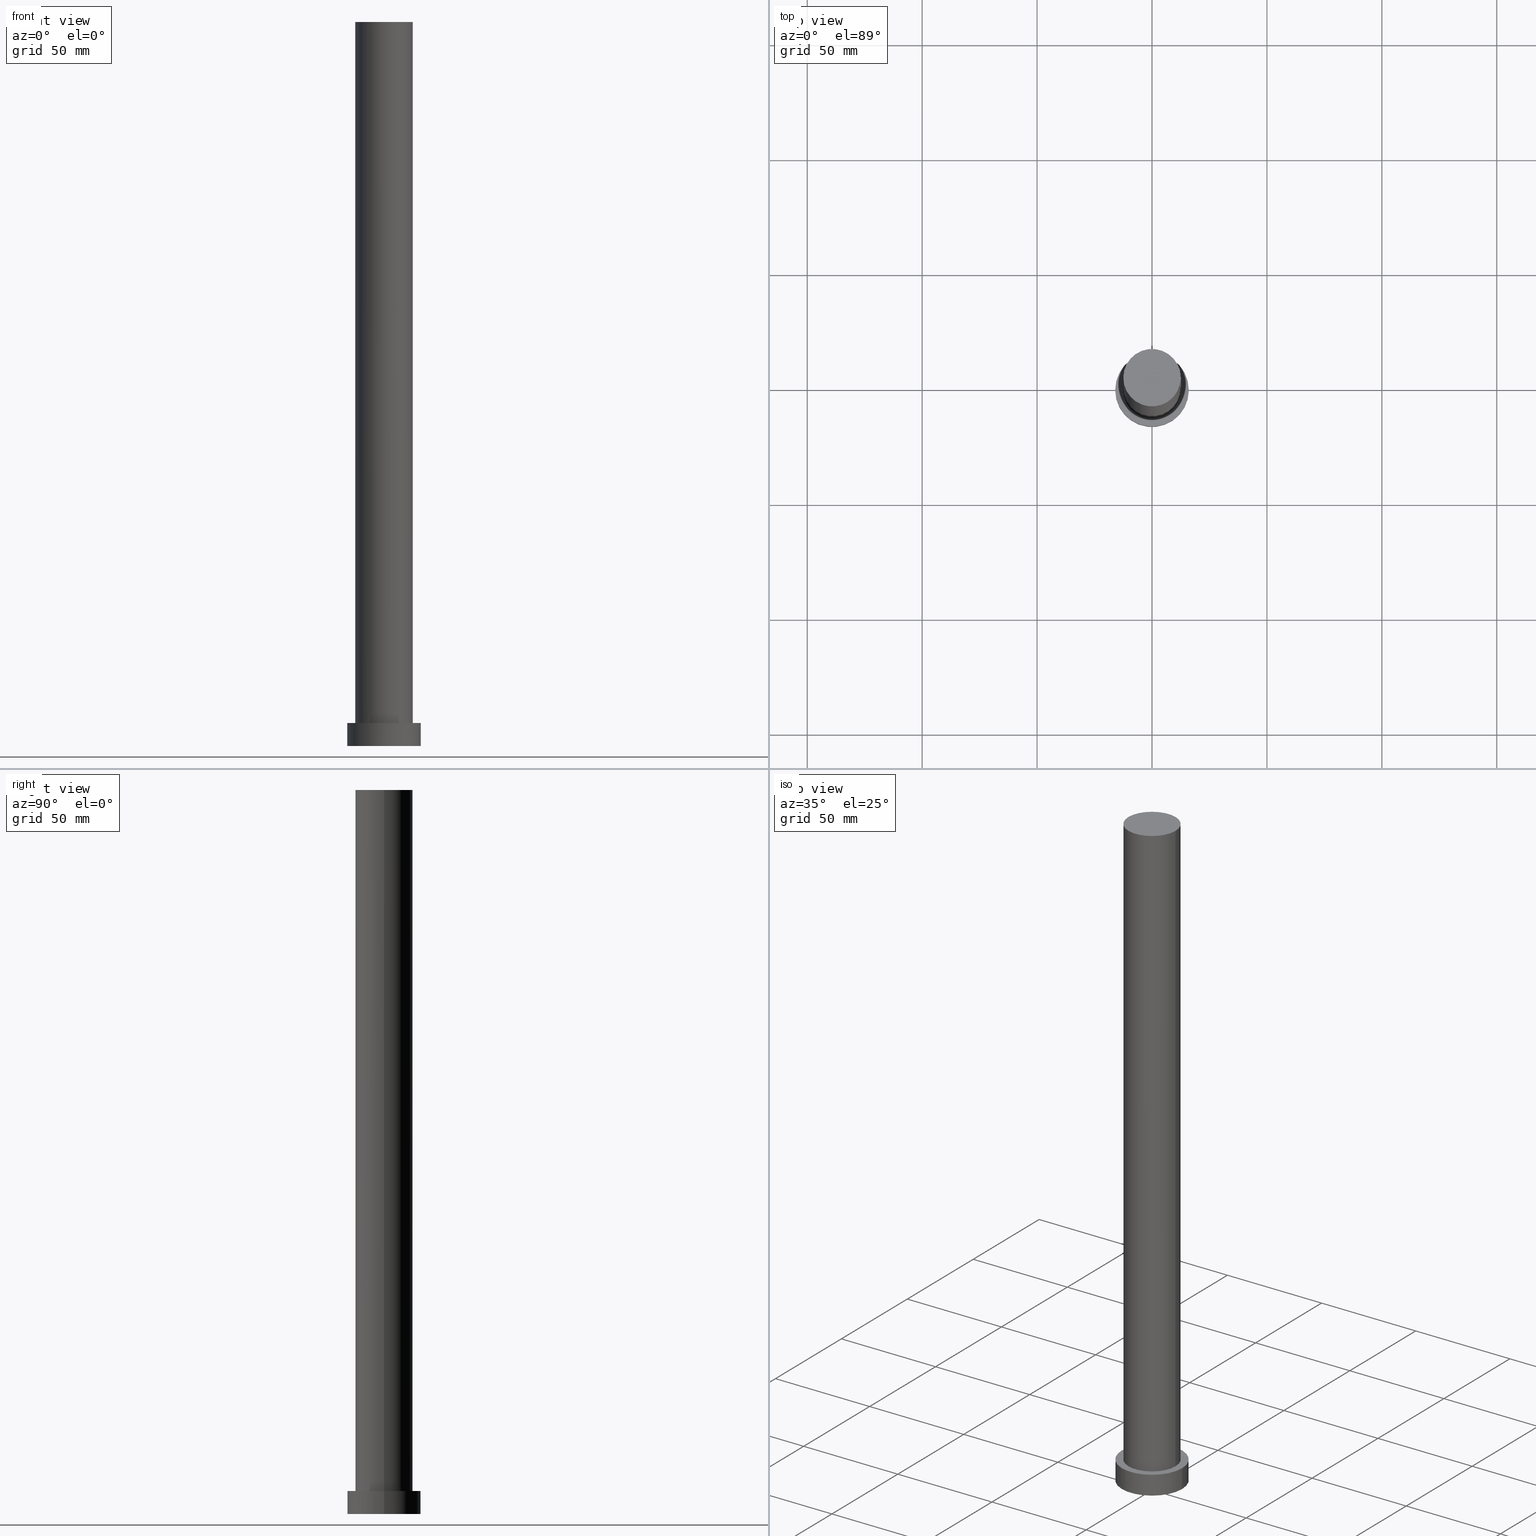
[diagram: canonical four-view strip — front | top / right | iso, engineering-drawing reading convention]
A machine part, canonical four-view strip (front | top / right | iso — engineering-drawing reading convention). The complete STEP part file that produces these views, byte-faithful:
ISO-10303-21;
HEADER;
FILE_DESCRIPTION (( 'STEP AP203' ),
    '1' );
FILE_NAME ('b6da.STEP',
    '2026-02-06T12:34:42',
    ( '' ),
    ( '' ),
    'SwSTEP 2.0',
    'SolidWorks 2019',
    '' );
FILE_SCHEMA (( 'CONFIG_CONTROL_DESIGN' ));
ENDSEC;

DATA;
#1 = CC_DESIGN_DATE_AND_TIME_ASSIGNMENT ( #181, #232, ( #220 ) ) ;
#2 = CIRCLE ( 'NONE', #165, 12.50000000000000000 ) ;
#3 = VERTEX_POINT ( 'NONE', #89 ) ;
#4 = MANIFOLD_SOLID_BREP ( 'P�idat vysunut�m3', #244 ) ;
#5 = MECHANICAL_CONTEXT ( 'NONE', #82, 'mechanical' ) ;
#6 = CARTESIAN_POINT ( 'NONE',  ( -12.50000000000000000, 0.000000000000000000, 10.00000000000000000 ) ) ;
#7 = DATE_AND_TIME ( #138, #93 ) ;
#8 = FACE_BOUND ( 'NONE', #28, .T. ) ;
#9 = APPROVAL_PERSON_ORGANIZATION ( #214, #72, #33 ) ;
#10 = DIRECTION ( 'NONE',  ( 0.000000000000000000, 0.000000000000000000, 1.000000000000000000 ) ) ;
#11 = DATE_TIME_ROLE ( 'creation_date' ) ;
#12 = LINE ( 'NONE', #186, #53 ) ;
#13 = EDGE_CURVE ( 'NONE', #167, #3, #151, .T. ) ;
#14 = DATE_AND_TIME ( #60, #115 ) ;
#15 = DIRECTION ( 'NONE',  ( -0.000000000000000000, -0.000000000000000000, -1.000000000000000000 ) ) ;
#16 = VECTOR ( 'NONE', #219, 1000.000000000000000 ) ;
#17 = CIRCLE ( 'NONE', #178, 16.00000000000000000 ) ;
#18 = ORIENTED_EDGE ( 'NONE', *, *, #23, .F. ) ;
#19 = DESIGN_CONTEXT ( 'detailed design', #134, 'design' ) ;
#20 = EDGE_LOOP ( 'NONE', ( #200, #126, #236, #18 ) ) ;
#21 = COORDINATED_UNIVERSAL_TIME_OFFSET ( 1, 0, .AHEAD. ) ;
#22 = VERTEX_POINT ( 'NONE', #207 ) ;
#23 = EDGE_CURVE ( 'NONE', #160, #169, #209, .T. ) ;
#24 = UNCERTAINTY_MEASURE_WITH_UNIT (LENGTH_MEASURE( 1.000000000000000082E-05 ), #45, 'distance_accuracy_value', 'NONE');
#25 = CC_DESIGN_SECURITY_CLASSIFICATION ( #220, ( #31 ) ) ;
#26 = CIRCLE ( 'NONE', #145, 16.00000000000000000 ) ;
#27 = VERTEX_POINT ( 'NONE', #6 ) ;
#28 = EDGE_LOOP ( 'NONE', ( #107, #162 ) ) ;
#29 = APPROVAL_ROLE ( '' ) ;
#30 = AXIS2_PLACEMENT_3D ( 'NONE', #74, #225, #59 ) ;
#31 = PRODUCT_DEFINITION_FORMATION_WITH_SPECIFIED_SOURCE ( 'LIBOVOLN�', '', #210, .NOT_KNOWN. ) ;
#32 = ORIENTED_EDGE ( 'NONE', *, *, #129, .F. ) ;
#33 = APPROVAL_ROLE ( '' ) ;
#34 = PERSON_AND_ORGANIZATION ( #133, #233 ) ;
#35 = CARTESIAN_POINT ( 'NONE',  ( -16.00000000000000000, 0.000000000000000000, 10.00000000000000000 ) ) ;
#36 = APPROVAL_DATE_TIME ( #7, #72 ) ;
#37 = PERSON_AND_ORGANIZATION_ROLE ( 'design_owner' ) ;
#38 = DIRECTION ( 'NONE',  ( -0.000000000000000000, -0.000000000000000000, -1.000000000000000000 ) ) ;
#39 = EDGE_CURVE ( 'NONE', #22, #49, #135, .T. ) ;
#40 = DIRECTION ( 'NONE',  ( 1.000000000000000000, 0.000000000000000000, 0.000000000000000000 ) ) ;
#41 = DIRECTION ( 'NONE',  ( 0.000000000000000000, 0.000000000000000000, 1.000000000000000000 ) ) ;
#42 = FACE_OUTER_BOUND ( 'NONE', #20, .T. ) ;
#43 = AXIS2_PLACEMENT_3D ( 'NONE', #141, #123, #242 ) ;
#44 = ORIENTED_EDGE ( 'NONE', *, *, #229, .T. ) ;
#45 =( LENGTH_UNIT ( ) NAMED_UNIT ( * ) SI_UNIT ( .MILLI., .METRE. ) );
#46 = ADVANCED_FACE ( 'NONE', ( #55 ), #189, .T. ) ;
#47 = AXIS2_PLACEMENT_3D ( 'NONE', #174, #10, #248 ) ;
#48 = CC_DESIGN_APPROVAL ( #106, ( #168 ) ) ;
#49 = VERTEX_POINT ( 'NONE', #241 ) ;
#50 = ORIENTED_EDGE ( 'NONE', *, *, #249, .T. ) ;
#51 = CC_DESIGN_PERSON_AND_ORGANIZATION_ASSIGNMENT ( #175, #108, ( #31 ) ) ;
#52 = APPROVAL_STATUS ( 'not_yet_approved' ) ;
#53 = VECTOR ( 'NONE', #15, 1000.000000000000000 ) ;
#54 = APPROVAL_PERSON_ORGANIZATION ( #170, #106, #29 ) ;
#55 = FACE_OUTER_BOUND ( 'NONE', #254, .T. ) ;
#56 = CYLINDRICAL_SURFACE ( 'NONE', #78, 12.50000000000000000 ) ;
#57 = PLANE ( 'NONE',  #183 ) ;
#58 = EDGE_CURVE ( 'NONE', #22, #111, #142, .T. ) ;
#59 = DIRECTION ( 'NONE',  ( -1.000000000000000000, 0.000000000000000000, 0.000000000000000000 ) ) ;
#60 = CALENDAR_DATE ( 2026, 6, 2 ) ;
#61 = FACE_OUTER_BOUND ( 'NONE', #195, .T. ) ;
#62 = DIRECTION ( 'NONE',  ( 0.000000000000000000, 0.000000000000000000, 1.000000000000000000 ) ) ;
#63 = PERSON_AND_ORGANIZATION_ROLE ( 'design_supplier' ) ;
#64 = ADVANCED_FACE ( 'NONE', ( #42 ), #245, .T. ) ;
#65 = CIRCLE ( 'NONE', #205, 12.50000000000000000 ) ;
#66 = EDGE_LOOP ( 'NONE', ( #179, #144, #44, #105 ) ) ;
#67 = DIRECTION ( 'NONE',  ( 0.000000000000000000, 0.000000000000000000, 1.000000000000000000 ) ) ;
#68 = EDGE_CURVE ( 'NONE', #27, #111, #2, .T. ) ;
#69 = FACE_OUTER_BOUND ( 'NONE', #66, .T. ) ;
#70 = DIRECTION ( 'NONE',  ( 1.000000000000000000, 0.000000000000000000, 0.000000000000000000 ) ) ;
#71 = CARTESIAN_POINT ( 'NONE',  ( -16.00000000000000000, 0.000000000000000000, 10.00000000000000000 ) ) ;
#72 = APPROVAL ( #52, 'NEUR�EN�' ) ;
#73 = COORDINATED_UNIVERSAL_TIME_OFFSET ( 1, 0, .AHEAD. ) ;
#74 = CARTESIAN_POINT ( 'NONE',  ( 0.000000000000000000, 0.000000000000000000, 10.00000000000000000 ) ) ;
#75 = APPROVAL_ROLE ( '' ) ;
#76 = PLANE ( 'NONE',  #94 ) ;
#77 = DIRECTION ( 'NONE',  ( 0.000000000000000000, 0.000000000000000000, 1.000000000000000000 ) ) ;
#78 = AXIS2_PLACEMENT_3D ( 'NONE', #250, #38, #120 ) ;
#79 = LOCAL_TIME ( 13, 34, 42.00000000000000000, #73 ) ;
#80 = PERSON_AND_ORGANIZATION ( #133, #233 ) ;
#81 = CALENDAR_DATE ( 2026, 6, 2 ) ;
#82 = APPLICATION_CONTEXT ( 'configuration controlled 3d designs of mechanical parts and assemblies' ) ;
#83 =( NAMED_UNIT ( * ) PLANE_ANGLE_UNIT ( ) SI_UNIT ( $, .RADIAN. ) );
#84 = DIRECTION ( 'NONE',  ( 0.000000000000000000, 0.000000000000000000, 1.000000000000000000 ) ) ;
#85 = AXIS2_PLACEMENT_3D ( 'NONE', #171, #246, #137 ) ;
#86 = CC_DESIGN_APPROVAL ( #125, ( #31 ) ) ;
#87 = ORIENTED_EDGE ( 'NONE', *, *, #103, .T. ) ;
#88 = COORDINATED_UNIVERSAL_TIME_OFFSET ( 1, 0, .AHEAD. ) ;
#89 = CARTESIAN_POINT ( 'NONE',  ( 16.00000000000000000, 1.959434878635765131E-15, 0.000000000000000000 ) ) ;
#90 = CALENDAR_DATE ( 2026, 6, 2 ) ;
#91 = CARTESIAN_POINT ( 'NONE',  ( 0.000000000000000000, 0.000000000000000000, 315.0000000000000000 ) ) ;
#92 = CARTESIAN_POINT ( 'NONE',  ( 0.000000000000000000, 0.000000000000000000, 10.00000000000000000 ) ) ;
#93 = LOCAL_TIME ( 13, 34, 42.00000000000000000, #88 ) ;
#94 = AXIS2_PLACEMENT_3D ( 'NONE', #230, #62, #143 ) ;
#95 = PERSON_AND_ORGANIZATION_ROLE ( 'creator' ) ;
#96 = DIRECTION ( 'NONE',  ( 1.000000000000000000, 0.000000000000000000, 0.000000000000000000 ) ) ;
#97 = CALENDAR_DATE ( 2026, 6, 2 ) ;
#98 = CARTESIAN_POINT ( 'NONE',  ( 12.50000000000000000, 1.530808498934191521E-15, 10.00000000000000000 ) ) ;
#99 = CARTESIAN_POINT ( 'NONE',  ( 0.000000000000000000, 0.000000000000000000, 0.000000000000000000 ) ) ;
#100 = APPROVAL_DATE_TIME ( #14, #125 ) ;
#101 = DIRECTION ( 'NONE',  ( 0.000000000000000000, 0.000000000000000000, 1.000000000000000000 ) ) ;
#102 = DIRECTION ( 'NONE',  ( 1.000000000000000000, 0.000000000000000000, 0.000000000000000000 ) ) ;
#103 = EDGE_CURVE ( 'NONE', #49, #27, #12, .T. ) ;
#104 = ORIENTED_EDGE ( 'NONE', *, *, #235, .F. ) ;
#105 = ORIENTED_EDGE ( 'NONE', *, *, #103, .F. ) ;
#106 = APPROVAL ( #240, 'NEUR�EN�' ) ;
#107 = ORIENTED_EDGE ( 'NONE', *, *, #68, .F. ) ;
#108 = PERSON_AND_ORGANIZATION_ROLE ( 'creator' ) ;
#109 = EDGE_LOOP ( 'NONE', ( #203, #50 ) ) ;
#110 = ADVANCED_BREP_SHAPE_REPRESENTATION ( 'b6da', ( #4, #136 ), #252 ) ;
#111 = VERTEX_POINT ( 'NONE', #98 ) ;
#112 = CC_DESIGN_PERSON_AND_ORGANIZATION_ASSIGNMENT ( #222, #95, ( #168 ) ) ;
#113 = ORIENTED_EDGE ( 'NONE', *, *, #68, .T. ) ;
#114 = APPROVAL_DATE_TIME ( #243, #106 ) ;
#115 = LOCAL_TIME ( 13, 34, 42.00000000000000000, #153 ) ;
#116 = ORIENTED_EDGE ( 'NONE', *, *, #39, .T. ) ;
#117 = APPLICATION_PROTOCOL_DEFINITION ( 'international standard', 'config_control_design', 1994, #134 ) ;
#118 = CARTESIAN_POINT ( 'NONE',  ( 12.50000000000000000, 1.530808498934191521E-15, 315.0000000000000000 ) ) ;
#119 = SHAPE_DEFINITION_REPRESENTATION ( #139, #110 ) ;
#120 = DIRECTION ( 'NONE',  ( -1.000000000000000000, 0.000000000000000000, 0.000000000000000000 ) ) ;
#121 = DIRECTION ( 'NONE',  ( -0.000000000000000000, -0.000000000000000000, -1.000000000000000000 ) ) ;
#122 = FACE_OUTER_BOUND ( 'NONE', #146, .T. ) ;
#123 = DIRECTION ( 'NONE',  ( -0.000000000000000000, -0.000000000000000000, -1.000000000000000000 ) ) ;
#124 = APPROVAL_STATUS ( 'not_yet_approved' ) ;
#125 = APPROVAL ( #124, 'NEUR�EN�' ) ;
#126 = ORIENTED_EDGE ( 'NONE', *, *, #13, .T. ) ;
#127 = SECURITY_CLASSIFICATION_LEVEL ( 'unclassified' ) ;
#128 = ORIENTED_EDGE ( 'NONE', *, *, #58, .F. ) ;
#129 = EDGE_CURVE ( 'NONE', #169, #3, #156, .T. ) ;
#130 = CC_DESIGN_APPROVAL ( #72, ( #220 ) ) ;
#131 = ORIENTED_EDGE ( 'NONE', *, *, #13, .F. ) ;
#132 = CC_DESIGN_DATE_AND_TIME_ASSIGNMENT ( #191, #11, ( #168 ) ) ;
#133 = PERSON ( 'NEUR�EN�', 'NEUR�EN�', 'NEUR�EN�', ('NEUR�EN�'), ('NEUR�EN�'), ('NEUR�EN�') ) ;
#134 = APPLICATION_CONTEXT ( 'configuration controlled 3d designs of mechanical parts and assemblies' ) ;
#135 = CIRCLE ( 'NONE', #190, 12.50000000000000000 ) ;
#136 = AXIS2_PLACEMENT_3D ( 'NONE', #239, #67, #149 ) ;
#137 = DIRECTION ( 'NONE',  ( -1.000000000000000000, 0.000000000000000000, 0.000000000000000000 ) ) ;
#138 = CALENDAR_DATE ( 2026, 6, 2 ) ;
#139 = PRODUCT_DEFINITION_SHAPE ( 'NONE', 'NONE',  #168 ) ;
#140 = DIRECTION ( 'NONE',  ( -0.000000000000000000, -0.000000000000000000, -1.000000000000000000 ) ) ;
#141 = CARTESIAN_POINT ( 'NONE',  ( 0.000000000000000000, 0.000000000000000000, 10.00000000000000000 ) ) ;
#142 = LINE ( 'NONE', #118, #227 ) ;
#143 = DIRECTION ( 'NONE',  ( 1.000000000000000000, 0.000000000000000000, -0.000000000000000000 ) ) ;
#144 = ORIENTED_EDGE ( 'NONE', *, *, #58, .T. ) ;
#145 = AXIS2_PLACEMENT_3D ( 'NONE', #155, #224, #96 ) ;
#146 = EDGE_LOOP ( 'NONE', ( #131, #104, #237, #198 ) ) ;
#147 = LOCAL_TIME ( 13, 34, 42.00000000000000000, #21 ) ;
#148 = ADVANCED_FACE ( 'NONE', ( #69 ), #56, .T. ) ;
#149 = DIRECTION ( 'NONE',  ( 1.000000000000000000, 0.000000000000000000, 0.000000000000000000 ) ) ;
#150 = PLANE ( 'NONE',  #251 ) ;
#151 = LINE ( 'NONE', #176, #202 ) ;
#152 = ADVANCED_FACE ( 'NONE', ( #158 ), #76, .T. ) ;
#153 = COORDINATED_UNIVERSAL_TIME_OFFSET ( 1, 0, .AHEAD. ) ;
#154 = CARTESIAN_POINT ( 'NONE',  ( -16.00000000000000000, 0.000000000000000000, 0.000000000000000000 ) ) ;
#155 = CARTESIAN_POINT ( 'NONE',  ( 0.000000000000000000, 0.000000000000000000, 0.000000000000000000 ) ) ;
#156 = CIRCLE ( 'NONE', #47, 16.00000000000000000 ) ;
#157 = AXIS2_PLACEMENT_3D ( 'NONE', #247, #194, #102 ) ;
#158 = FACE_OUTER_BOUND ( 'NONE', #182, .T. ) ;
#159 = DIRECTION ( 'NONE',  ( 1.000000000000000000, 0.000000000000000000, -0.000000000000000000 ) ) ;
#160 = VERTEX_POINT ( 'NONE', #35 ) ;
#161 = PERSON_AND_ORGANIZATION ( #133, #233 ) ;
#162 = ORIENTED_EDGE ( 'NONE', *, *, #229, .F. ) ;
#163 = CC_DESIGN_PERSON_AND_ORGANIZATION_ASSIGNMENT ( #161, #199, ( #220 ) ) ;
#164 = DIRECTION ( 'NONE',  ( 1.000000000000000000, 0.000000000000000000, 0.000000000000000000 ) ) ;
#165 = AXIS2_PLACEMENT_3D ( 'NONE', #192, #187, #223 ) ;
#166 = AXIS2_PLACEMENT_3D ( 'NONE', #177, #253, #70 ) ;
#167 = VERTEX_POINT ( 'NONE', #211 ) ;
#168 = PRODUCT_DEFINITION ( 'NEZN�M�', '', #31, #19 ) ;
#169 = VERTEX_POINT ( 'NONE', #154 ) ;
#170 = PERSON_AND_ORGANIZATION ( #133, #233 ) ;
#171 = CARTESIAN_POINT ( 'NONE',  ( 0.000000000000000000, 0.000000000000000000, 315.0000000000000000 ) ) ;
#172 = FACE_OUTER_BOUND ( 'NONE', #109, .T. ) ;
#173 = PERSON_AND_ORGANIZATION ( #133, #233 ) ;
#174 = CARTESIAN_POINT ( 'NONE',  ( 0.000000000000000000, 0.000000000000000000, 0.000000000000000000 ) ) ;
#175 = PERSON_AND_ORGANIZATION ( #133, #233 ) ;
#176 = CARTESIAN_POINT ( 'NONE',  ( 16.00000000000000000, 1.959434878635765131E-15, 10.00000000000000000 ) ) ;
#177 = CARTESIAN_POINT ( 'NONE',  ( 0.000000000000000000, 0.000000000000000000, 10.00000000000000000 ) ) ;
#178 = AXIS2_PLACEMENT_3D ( 'NONE', #221, #180, #217 ) ;
#179 = ORIENTED_EDGE ( 'NONE', *, *, #39, .F. ) ;
#180 = DIRECTION ( 'NONE',  ( 0.000000000000000000, 0.000000000000000000, 1.000000000000000000 ) ) ;
#181 = DATE_AND_TIME ( #81, #147 ) ;
#182 = EDGE_LOOP ( 'NONE', ( #213, #116 ) ) ;
#183 = AXIS2_PLACEMENT_3D ( 'NONE', #92, #41, #159 ) ;
#184 = ADVANCED_FACE ( 'NONE', ( #8, #172 ), #57, .T. ) ;
#185 = APPLICATION_PROTOCOL_DEFINITION ( 'international standard', 'config_control_design', 1994, #82 ) ;
#186 = CARTESIAN_POINT ( 'NONE',  ( -12.50000000000000000, 0.000000000000000000, 315.0000000000000000 ) ) ;
#187 = DIRECTION ( 'NONE',  ( 0.000000000000000000, 0.000000000000000000, 1.000000000000000000 ) ) ;
#188 = ADVANCED_FACE ( 'NONE', ( #122 ), #226, .T. ) ;
#189 = CYLINDRICAL_SURFACE ( 'NONE', #85, 12.50000000000000000 ) ;
#190 = AXIS2_PLACEMENT_3D ( 'NONE', #91, #101, #40 ) ;
#191 = DATE_AND_TIME ( #97, #79 ) ;
#192 = CARTESIAN_POINT ( 'NONE',  ( 0.000000000000000000, 0.000000000000000000, 10.00000000000000000 ) ) ;
#193 = DIRECTION ( 'NONE',  ( 1.000000000000000000, 0.000000000000000000, -0.000000000000000000 ) ) ;
#194 = DIRECTION ( 'NONE',  ( 0.000000000000000000, 0.000000000000000000, 1.000000000000000000 ) ) ;
#195 = EDGE_LOOP ( 'NONE', ( #32, #197 ) ) ;
#196 = LOCAL_TIME ( 13, 34, 42.00000000000000000, #206 ) ;
#197 = ORIENTED_EDGE ( 'NONE', *, *, #208, .F. ) ;
#198 = ORIENTED_EDGE ( 'NONE', *, *, #129, .T. ) ;
#199 = PERSON_AND_ORGANIZATION_ROLE ( 'classification_officer' ) ;
#200 = ORIENTED_EDGE ( 'NONE', *, *, #249, .F. ) ;
#201 = CC_DESIGN_PERSON_AND_ORGANIZATION_ASSIGNMENT ( #80, #63, ( #31 ) ) ;
#202 = VECTOR ( 'NONE', #140, 1000.000000000000000 ) ;
#203 = ORIENTED_EDGE ( 'NONE', *, *, #235, .T. ) ;
#204 = ADVANCED_FACE ( 'NONE', ( #61 ), #150, .F. ) ;
#205 = AXIS2_PLACEMENT_3D ( 'NONE', #234, #84, #164 ) ;
#206 = COORDINATED_UNIVERSAL_TIME_OFFSET ( 1, 0, .AHEAD. ) ;
#207 = CARTESIAN_POINT ( 'NONE',  ( 12.50000000000000000, 1.530808498934191521E-15, 315.0000000000000000 ) ) ;
#208 = EDGE_CURVE ( 'NONE', #3, #169, #26, .T. ) ;
#209 = LINE ( 'NONE', #71, #16 ) ;
#210 = PRODUCT ( 'b6da', 'b6da', '', ( #5 ) ) ;
#211 = CARTESIAN_POINT ( 'NONE',  ( 16.00000000000000000, 1.959434878635765131E-15, 10.00000000000000000 ) ) ;
#212 = PRODUCT_RELATED_PRODUCT_CATEGORY ( 'detail', '', ( #210 ) ) ;
#213 = ORIENTED_EDGE ( 'NONE', *, *, #255, .T. ) ;
#214 = PERSON_AND_ORGANIZATION ( #133, #233 ) ;
#215 = APPROVAL_PERSON_ORGANIZATION ( #173, #125, #75 ) ;
#216 =( NAMED_UNIT ( * ) SI_UNIT ( $, .STERADIAN. ) SOLID_ANGLE_UNIT ( ) );
#217 = DIRECTION ( 'NONE',  ( 1.000000000000000000, 0.000000000000000000, 0.000000000000000000 ) ) ;
#218 = ORIENTED_EDGE ( 'NONE', *, *, #255, .F. ) ;
#219 = DIRECTION ( 'NONE',  ( -0.000000000000000000, -0.000000000000000000, -1.000000000000000000 ) ) ;
#220 = SECURITY_CLASSIFICATION ( '', '', #127 ) ;
#221 = CARTESIAN_POINT ( 'NONE',  ( 0.000000000000000000, 0.000000000000000000, 10.00000000000000000 ) ) ;
#222 = PERSON_AND_ORGANIZATION ( #133, #233 ) ;
#223 = DIRECTION ( 'NONE',  ( 1.000000000000000000, 0.000000000000000000, 0.000000000000000000 ) ) ;
#224 = DIRECTION ( 'NONE',  ( 0.000000000000000000, 0.000000000000000000, 1.000000000000000000 ) ) ;
#225 = DIRECTION ( 'NONE',  ( -0.000000000000000000, -0.000000000000000000, -1.000000000000000000 ) ) ;
#226 = CYLINDRICAL_SURFACE ( 'NONE', #43, 16.00000000000000000 ) ;
#227 = VECTOR ( 'NONE', #121, 1000.000000000000000 ) ;
#228 = CIRCLE ( 'NONE', #166, 16.00000000000000000 ) ;
#229 = EDGE_CURVE ( 'NONE', #111, #27, #231, .T. ) ;
#230 = CARTESIAN_POINT ( 'NONE',  ( 0.000000000000000000, 0.000000000000000000, 315.0000000000000000 ) ) ;
#231 = CIRCLE ( 'NONE', #157, 12.50000000000000000 ) ;
#232 = DATE_TIME_ROLE ( 'classification_date' ) ;
#233 = ORGANIZATION ( 'NEUR�EN�', 'NEUR�EN�', '' ) ;
#234 = CARTESIAN_POINT ( 'NONE',  ( 0.000000000000000000, 0.000000000000000000, 315.0000000000000000 ) ) ;
#235 = EDGE_CURVE ( 'NONE', #160, #167, #228, .T. ) ;
#236 = ORIENTED_EDGE ( 'NONE', *, *, #208, .T. ) ;
#237 = ORIENTED_EDGE ( 'NONE', *, *, #23, .T. ) ;
#238 = CC_DESIGN_PERSON_AND_ORGANIZATION_ASSIGNMENT ( #34, #37, ( #210 ) ) ;
#239 = CARTESIAN_POINT ( 'NONE',  ( 0.000000000000000000, 0.000000000000000000, 0.000000000000000000 ) ) ;
#240 = APPROVAL_STATUS ( 'not_yet_approved' ) ;
#241 = CARTESIAN_POINT ( 'NONE',  ( -12.50000000000000000, 0.000000000000000000, 315.0000000000000000 ) ) ;
#242 = DIRECTION ( 'NONE',  ( -1.000000000000000000, 0.000000000000000000, 0.000000000000000000 ) ) ;
#243 = DATE_AND_TIME ( #90, #196 ) ;
#244 = CLOSED_SHELL ( 'NONE', ( #148, #64, #188, #184, #204, #46, #152 ) ) ;
#245 = CYLINDRICAL_SURFACE ( 'NONE', #30, 16.00000000000000000 ) ;
#246 = DIRECTION ( 'NONE',  ( -0.000000000000000000, -0.000000000000000000, -1.000000000000000000 ) ) ;
#247 = CARTESIAN_POINT ( 'NONE',  ( 0.000000000000000000, 0.000000000000000000, 10.00000000000000000 ) ) ;
#248 = DIRECTION ( 'NONE',  ( 1.000000000000000000, 0.000000000000000000, 0.000000000000000000 ) ) ;
#249 = EDGE_CURVE ( 'NONE', #167, #160, #17, .T. ) ;
#250 = CARTESIAN_POINT ( 'NONE',  ( 0.000000000000000000, 0.000000000000000000, 315.0000000000000000 ) ) ;
#251 = AXIS2_PLACEMENT_3D ( 'NONE', #99, #77, #193 ) ;
#252 =( GEOMETRIC_REPRESENTATION_CONTEXT ( 3 ) GLOBAL_UNCERTAINTY_ASSIGNED_CONTEXT ( ( #24 ) ) GLOBAL_UNIT_ASSIGNED_CONTEXT ( ( #45, #83, #216 ) ) REPRESENTATION_CONTEXT ( 'NONE', 'WORKASPACE' ) );
#253 = DIRECTION ( 'NONE',  ( 0.000000000000000000, 0.000000000000000000, 1.000000000000000000 ) ) ;
#254 = EDGE_LOOP ( 'NONE', ( #128, #218, #87, #113 ) ) ;
#255 = EDGE_CURVE ( 'NONE', #49, #22, #65, .T. ) ;
ENDSEC;
END-ISO-10303-21;
